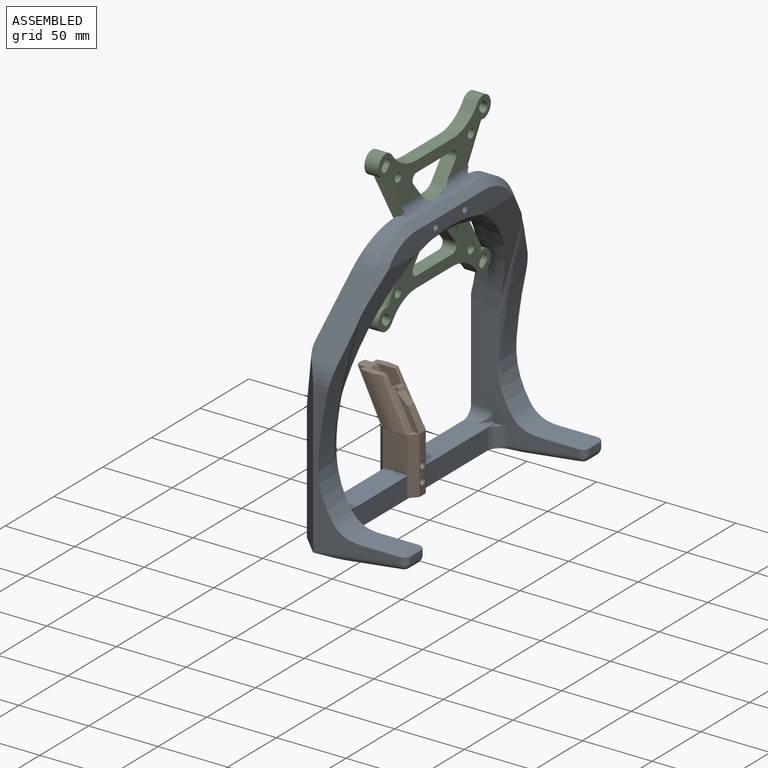
[diagram: assembled view]
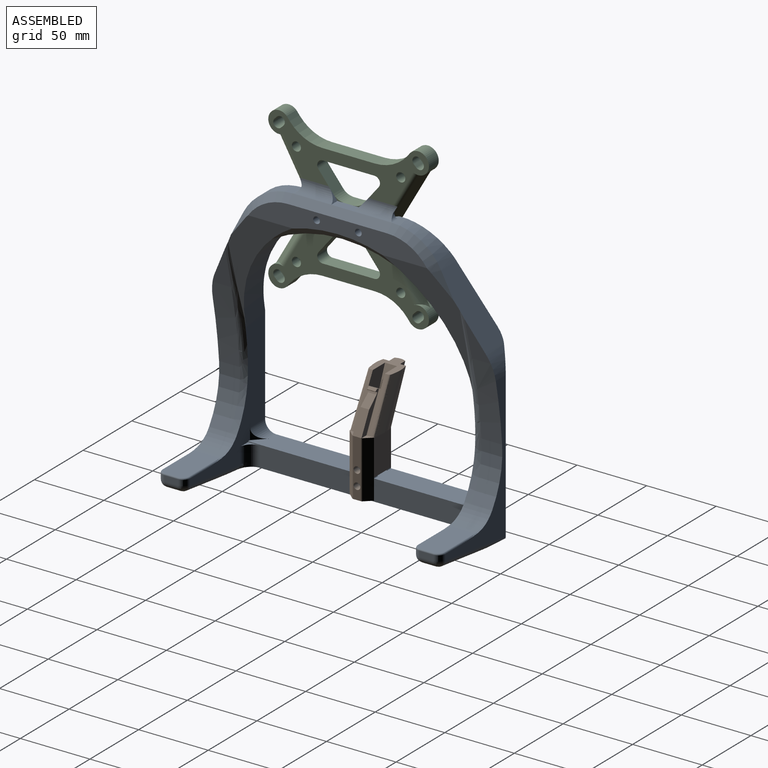
[diagram: assembled view, second angle]
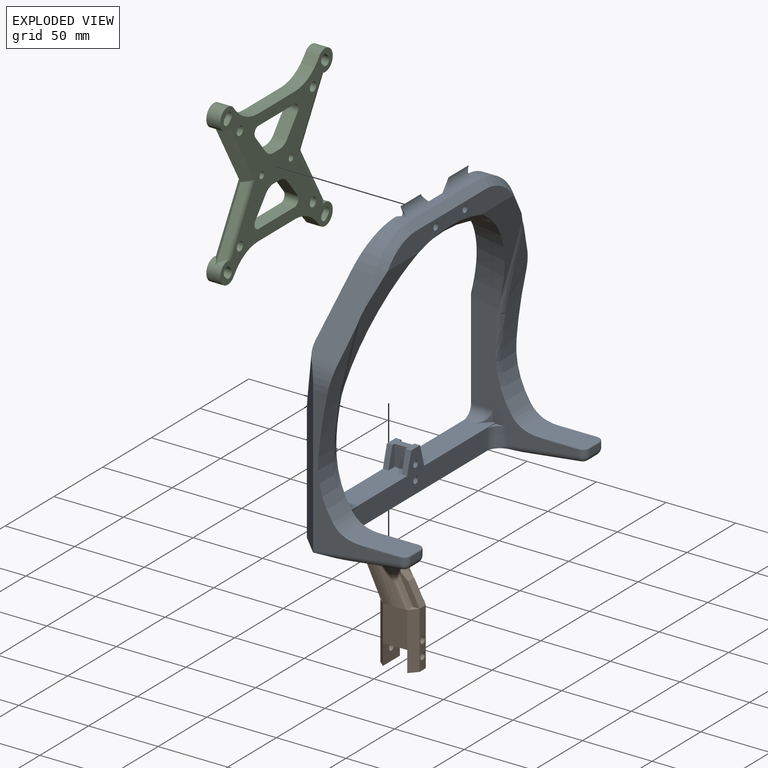
[diagram: exploded view]
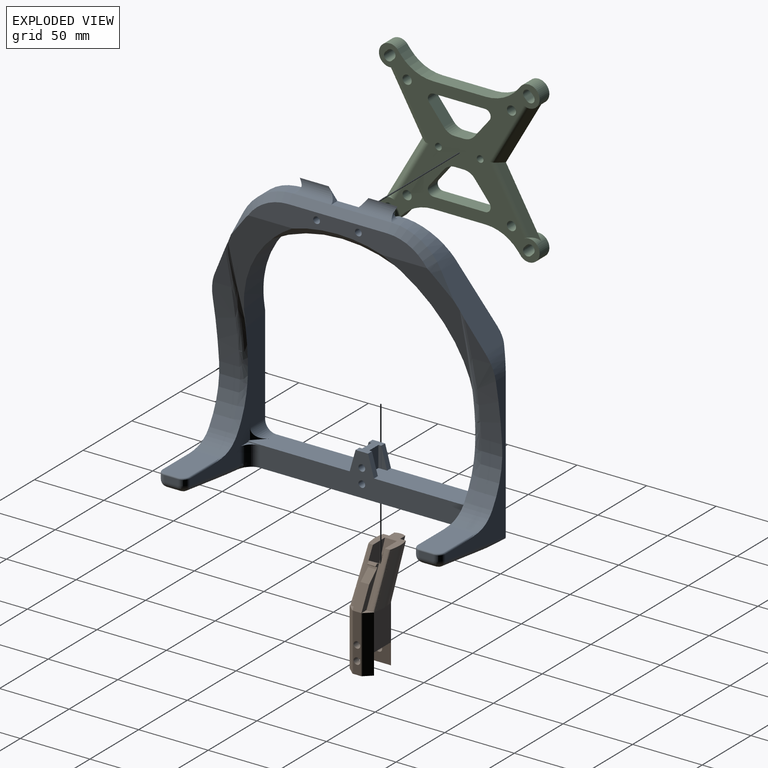
[diagram: exploded view, second angle]
ASSEMBLY  parts=3 mates=2
PART A: 168 faces, bbox 88.6x247.1x212.8 mm
  f0: plane 71.09x5mm, normal (0.71,0,0.71), area 502.7mm2, adj f1,f3,f72,f129,f130,f137
  f1: cylinder r=8mm len=27.77mm, axis (0,1,0), area 255.7mm2, adj f0,f2,f129,f135,f159,f160
  f2: plane 71.74x32.44mm, normal (-1,0,0), area 1389.7mm2, adj f1,f3,f4,f5,f7,f9,f85,f135
  f3: plane 16.05x6.45mm, normal (0,0,1), area 103.5mm2, adj f0,f2,f135,f136
  f4: cylinder r=100mm len=50.09mm, axis (1,0,0), area 478.7mm2, adj f2,f5,f81,f134,f139,f146,f151,f155
  f5: plane 6.45x0.51mm, normal (0,0,-1), area 3.3mm2, adj f2,f4,f7,f133
  f6: plane 101.97x64.3mm, normal (-0.96,0,0.26), area 1945.8mm2, adj f76,f82,f85,f145,f146,f147,f150,f162
  f7: cylinder r=100mm len=50.09mm, axis (-1,0,0), area 478.7mm2, adj f2,f5,f80,f132,f138,f143,f152,f156
  f8: plane 101.97x64.3mm, normal (-0.96,0,0.26), area 1945.8mm2, adj f9,f75,f83,f142,f143,f144,f153,f165
  f9: cylinder r=40mm len=43.91mm, axis (-1,0,0), area 580.2mm2, adj f2,f8,f83,f130,f153,f157,f161
  f10: plane 35.36x18mm, normal (0,0,1), area 629.5mm2, adj f107,f108,f109,f110,f111,f119
  f11: plane 35.36x18mm, normal (0,0,1), area 629.5mm2, adj f112,f113,f114,f115,f116,f122
  f12: plane 8.31x8.31mm, normal (0,0,1), area 15.3mm2, adj f13,f47,f55,f68,f71
  f13: plane 163.45x30mm, normal (1,0,0), area 2372.8mm2, adj f12,f14,f17,f20,f28,f29,f30,f31
  f14: plane 79.22x17.45mm, normal (0,0,1), area 1241.1mm2, adj f13,f16,f18,f25,f26,f27,f31,f35
  f15: cylinder r=350mm len=55.48mm, axis (0,1,0), area 833mm2, adj f43,f73,f84,f103,f104,f124
  f16: plane 11.36x11.36mm, normal (0.71,-0.71,0), area 19.4mm2, adj f14,f47,f97
  f17: plane 79.22x17.45mm, normal (0,0,1), area 1241.1mm2, adj f13,f21,f22,f23,f24,f32,f39,f42
  f18: plane 15x0.05mm, normal (0,1,0), area 0.7mm2, adj f14,f27,f28,f37
  f19: plane 30x17.45mm, normal (-1,0,0), area 360.5mm2, adj f20,f28,f29,f30,f33,f34,f38,f40
  f20: plane 204.71x43.44mm, normal (0,0,-1), area 4169.8mm2, adj f13,f19,f44,f46,f52,f53,f54,f55
  f21: plane 15x6.22mm, normal (-1,0,0), area 61.7mm2, adj f17,f24,f28,f32
  f22: plane 15x0.05mm, normal (0,-1,0), area 0.7mm2, adj f17,f23,f28,f42
  f23: plane 15x2mm, normal (1,0,0), area 30mm2, adj f17,f22,f24,f28
  f24: plane 15x9.45mm, normal (0,-1,0), area 141.8mm2, adj f17,f21,f23,f28
  f25: plane 15x6.22mm, normal (-1,0,0), area 61.7mm2, adj f14,f26,f28,f31
  f26: plane 15x9.45mm, normal (0,1,0), area 141.8mm2, adj f14,f25,f27,f28
  f27: plane 15x2mm, normal (1,0,0), area 30mm2, adj f14,f18,f26,f28
  f28: plane 17.45x9mm, normal (0,0,1), area 119.2mm2, adj f13,f18,f19,f21,f22,f23,f24,f25
  f29: cylinder r=2.4mm len=17.45mm, axis (1,0,0), area 263.1mm2, adj f13,f19
  f30: cylinder r=2.4mm len=17.45mm, axis (1,0,0), area 263.1mm2, adj f13,f19
  f31: plane 15x4.22mm, normal (0,0.96,0.27), area 62.3mm2, adj f13,f14,f25,f28
  f32: plane 15x4.22mm, normal (0,-0.96,0.27), area 62.3mm2, adj f13,f17,f21,f28
  f33: plane 15x0.05mm, normal (0,-1,0), area 0.8mm2, adj f19,f34,f35,f36
  f34: plane 4.22x0.05mm, normal (0,0,-1), area 0.2mm2, adj f19,f33,f35,f36
  f35: plane 15x4.22mm, normal (0,0.96,0.27), area 62.3mm2, adj f14,f28,f33,f34,f36,f37
  f36: plane 15x4.22mm, normal (-1,0,0), area 31.7mm2, adj f33,f34,f35
  f37: plane 15x4.22mm, normal (1,0,0), area 31.7mm2, adj f14,f18,f35
  f38: plane 15x0.05mm, normal (0,1,0), area 0.8mm2, adj f19,f39,f40,f41
  f39: plane 15x4.22mm, normal (0,-0.96,0.27), area 62.3mm2, adj f17,f28,f38,f40,f41,f42
  f40: plane 4.22x0.05mm, normal (0,0,-1), area 0.2mm2, adj f19,f38,f39,f41
  f41: plane 15x4.22mm, normal (-1,0,0), area 31.7mm2, adj f38,f39,f40
  f42: plane 15x4.22mm, normal (1,0,0), area 31.7mm2, adj f17,f22,f39
  f43: plane 104.47x61.95mm, normal (0,1,0), area 1227.4mm2, adj f15,f52,f65,f84,f91,f112,f117,f123
  f44: plane 96.54x78.55mm, normal (-1,0,0), area 1578.7mm2, adj f14,f19,f20,f47,f52,f75,f80,f97
  f45: plane 104.47x61.95mm, normal (0,-1,0), area 1227.4mm2, adj f53,f61,f77,f86,f95,f98,f107,f118
  f46: plane 96.53x78.55mm, normal (-1,0,0), area 1578.7mm2, adj f17,f19,f20,f49,f53,f76,f81,f96
  f47: plane 93.38x76.95mm, normal (0,-1,0), area 1896.1mm2, adj f12,f13,f14,f16,f44,f62,f68,f78
  f48: plane 10x4.09mm, normal (1,0,0), area 40.9mm2, adj f63,f89,f91,f114
  f49: plane 93.38x76.95mm, normal (0,1,0), area 1896.1mm2, adj f13,f17,f46,f50,f58,f66,f79,f81
  f50: plane 8.31x8.31mm, normal (0,0,1), area 15.3mm2, adj f13,f49,f54,f66,f70
  f51: plane 10x4.09mm, normal (1,0,0), area 40.9mm2, adj f60,f93,f95,f109
  f52: plane 123.88x15.13mm, normal (-0.71,0.71,0), area 2284.8mm2, adj f20,f43,f44,f65,f75,f84
  f53: plane 123.88x15.13mm, normal (-0.71,-0.71,0), area 2284.8mm2, adj f20,f45,f46,f61,f76,f86
  f54: plane 14.5x0.67mm, normal (0.71,0.71,0), area 6.9mm2, adj f20,f50,f66,f67,f70
  f55: plane 14.5x0.67mm, normal (0.71,-0.71,0), area 6.9mm2, adj f12,f20,f68,f69,f71
  f56: plane 35.31x10mm, normal (0.12,0,-0.99), area 355.9mm2, adj f62,f63,f64,f65
  f57: plane 35.31x10mm, normal (0.12,0,-0.99), area 355.9mm2, adj f58,f59,f60,f61
  f58: cylinder r=5mm len=51.91mm, axis (0.99,0,0.12), area 356.2mm2, adj f20,f49,f57,f59,f67,f92
  f59: cylinder r=5mm len=11.24mm, axis (0,1,0), area 6.6mm2, adj f20,f57,f58,f61
  f60: cylinder r=5mm len=10mm, axis (0,-1,0), area 72.3mm2, adj f51,f57,f92,f94
  f61: cylinder r=5mm len=63.04mm, axis (-0.99,0,-0.12), area 385mm2, adj f20,f45,f53,f57,f59,f94
  f62: cylinder r=5mm len=51.91mm, axis (0.99,0,0.12), area 356.2mm2, adj f20,f47,f56,f64,f69,f88
  f63: cylinder r=5mm len=10mm, axis (0,-1,0), area 72.3mm2, adj f48,f56,f88,f90
  f64: cylinder r=5mm len=11.24mm, axis (0,1,0), area 6.6mm2, adj f20,f56,f62,f65
  f65: cylinder r=5mm len=63.04mm, axis (-0.99,0,-0.12), area 385mm2, adj f20,f43,f52,f56,f64,f90
  f66: cylinder r=8mm len=11.48mm, axis (0,0,1), area 72.2mm2, adj f49,f50,f54,f67
  f67: bspline ~8.28x8.27mm, area 26.2mm2, adj f20,f54,f58,f66
  f68: cylinder r=8mm len=11.48mm, axis (0,0,-1), area 72.2mm2, adj f12,f47,f55,f69
  f69: bspline ~8.28x8.27mm, area 26.2mm2, adj f20,f55,f62,f68
  f70: cylinder r=8mm len=14.5mm, axis (0,0,1), area 91.1mm2, adj f13,f20,f50,f54
  f71: cylinder r=8mm len=14.5mm, axis (0,0,1), area 91.1mm2, adj f12,f13,f20,f55
  f72: plane 128.54x15mm, normal (1,0,0), area 1417.9mm2, adj f0,f78,f79,f129,f130,f132,f133,f134
  f73: plane 28.56x14.23mm, normal (0.97,0,-0.24), area 207.1mm2, adj f15,f83,f84,f105,f106
  f74: plane 28.56x14.23mm, normal (0.97,0,-0.24), area 207.1mm2, adj f77,f82,f86,f99,f101
  f75: cylinder r=10mm len=49.54mm, axis (-0.26,-0.26,-0.93), area 322.9mm2, adj f8,f44,f52,f83,f84,f142
  f76: cylinder r=10mm len=49.54mm, axis (-0.26,0.26,-0.93), area 322.9mm2, adj f6,f46,f53,f82,f86,f145
  f77: cylinder r=350mm len=55.48mm, axis (0,-1,0), area 833mm2, adj f45,f74,f86,f100,f102,f126
  f78: plane 89.87x54.73mm, normal (0.97,0,-0.26), area 1159.1mm2, adj f47,f72,f80,f83,f104,f105,f106,f130
  f79: plane 89.87x54.73mm, normal (0.97,0,-0.26), area 1159.1mm2, adj f49,f72,f81,f82,f99,f101,f102,f128
  f80: cylinder r=100mm len=85.89mm, axis (1,0,0), area 1622.3mm2, adj f7,f44,f47,f78,f132,f142,f143
  f81: cylinder r=100mm len=85.89mm, axis (1,0,0), area 1622.3mm2, adj f4,f46,f49,f79,f134,f145,f146
  f82: plane 50.61x28.5mm, normal (0,-0.89,0.46), area 1130.1mm2, adj f6,f74,f76,f79,f85,f86,f99,f128
  f83: plane 50.61x28.5mm, normal (0,0.89,0.46), area 1130.1mm2, adj f8,f9,f73,f75,f78,f84,f106,f131
  f84: cylinder r=40mm len=19.15mm, axis (-1,0,0), area 269.7mm2, adj f15,f43,f52,f73,f75,f83
  f85: cylinder r=40mm len=43.91mm, axis (-1,0,0), area 580.2mm2, adj f2,f6,f82,f129,f150,f154,f160
  f86: cylinder r=40mm len=19.15mm, axis (1,0,0), area 269.7mm2, adj f45,f53,f74,f76,f77,f82
  f87: plane 11.36x11.36mm, normal (0.71,0.71,0), area 19.4mm2, adj f17,f49,f96
  f88: sphere r=5mm, area 37mm2, adj f62,f63,f89
  f89: cylinder r=5mm len=5mm, axis (0,0,1), area 32.1mm2, adj f47,f48,f88,f115
  f90: sphere r=5mm, area 23.8mm2, adj f63,f65,f91
  f91: cylinder r=5mm len=5mm, axis (0,0,1), area 32.1mm2, adj f43,f48,f90,f113
  f92: sphere r=5mm, area 23.8mm2, adj f58,f60,f93
  f93: cylinder r=5mm len=5mm, axis (0,0,-1), area 32.1mm2, adj f49,f51,f92,f110
  f94: sphere r=5mm, area 37mm2, adj f60,f61,f95
  f95: cylinder r=5mm len=5mm, axis (0,0,-1), area 32.1mm2, adj f45,f51,f94,f108
  f96: cylinder r=8mm len=15.45mm, axis (1,0,0), area 143.9mm2, adj f17,f46,f49,f87
  f97: cylinder r=8mm len=15.45mm, axis (-1,0,0), area 143.9mm2, adj f14,f16,f44,f47
  f98: plane 20.02x0.6mm, normal (0.83,0,0.56), area 7.9mm2, adj f45,f49,f118,f119,f120,f126,f127
  f99: bspline ~33.21x9.22mm, area 102.2mm2, adj f74,f79,f82,f101
  f100: torus R=357.5mm, axis (0,1,0), area 143mm2, adj f49,f77,f102,f127
  f101: bspline ~19.75x5.97mm, area 0.2mm2, adj f74,f79,f99,f102
  f102: bspline ~35.31x10.13mm, area 101.2mm2, adj f77,f79,f100,f101
  f103: torus R=357.5mm, axis (0,-1,0), area 143mm2, adj f15,f47,f104,f125
  f104: bspline ~27.75x8.17mm, area 101.2mm2, adj f15,f78,f103,f105
  f105: bspline ~18.29x5.58mm, area 0.2mm2, adj f73,f78,f104,f106
  f106: bspline ~70.86x19.04mm, area 102.2mm2, adj f73,f78,f83,f105
  f107: cylinder r=1mm len=31.36mm, axis (-1,0,0), area 41.1mm2, adj f10,f45,f108,f118
  f108: torus R=4mm, axis (0,0,1), area 11.4mm2, adj f10,f95,f107,f109
  f109: cylinder r=1mm len=10mm, axis (0,1,0), area 15.7mm2, adj f10,f51,f108,f110
  f110: torus R=4mm, axis (0,0,1), area 11.4mm2, adj f10,f93,f109,f111
  f111: cylinder r=1mm len=31.36mm, axis (-1,0,0), area 41.1mm2, adj f10,f49,f110,f120
  f112: cylinder r=1mm len=31.36mm, axis (1,0,0), area 41.1mm2, adj f11,f43,f113,f123
  f113: torus R=4mm, axis (0,0,1), area 11.4mm2, adj f11,f91,f112,f114
  f114: cylinder r=1mm len=10mm, axis (0,1,0), area 15.7mm2, adj f11,f48,f113,f115
  f115: torus R=4mm, axis (0,0,1), area 11.4mm2, adj f11,f89,f114,f116
  f116: cylinder r=1mm len=31.36mm, axis (1,0,0), area 41.1mm2, adj f11,f47,f115,f121
  f117: plane 20.02x0.6mm, normal (0.83,0,0.56), area 7.9mm2, adj f43,f47,f121,f122,f123,f124,f125
  f118: bspline ~30.81x21mm, area 24.1mm2, adj f45,f98,f107,f119
  f119: cylinder r=20mm len=18mm, axis (0,1,0), area 350.7mm2, adj f10,f98,f118,f120
  f120: bspline ~31.7x22.32mm, area 24.1mm2, adj f49,f98,f111,f119
  f121: bspline ~31.7x22.32mm, area 24.1mm2, adj f47,f116,f117,f122
  f122: cylinder r=20mm len=18mm, axis (0,-1,0), area 350.7mm2, adj f11,f117,f121,f123
  f123: bspline ~30.81x21mm, area 24.1mm2, adj f43,f112,f117,f122
  f124: cylinder r=60mm len=38.75mm, axis (0,1,0), area 608.7mm2, adj f15,f43,f117,f125
  f125: bspline ~67.49x55.3mm, area 253.5mm2, adj f47,f103,f117,f124
  f126: cylinder r=60mm len=38.75mm, axis (0,-1,0), area 608.7mm2, adj f45,f77,f98,f127
  f127: bspline ~67.49x55.3mm, area 253.5mm2, adj f49,f98,f100,f126
  f128: plane 17.34x12.75mm, normal (0.71,-0.63,0.33), area 57mm2, adj f79,f82,f129
  f129: cone r=35mm half-angle=45deg, axis (-1,0,0), area 285.6mm2, adj f0,f1,f72,f79,f85,f128,f160
  f130: cone r=35mm half-angle=45deg, axis (-1,0,0), area 285.6mm2, adj f0,f9,f72,f78,f131,f137,f161
  f131: plane 17.34x12.75mm, normal (0.71,0.63,0.33), area 57mm2, adj f78,f83,f130
  f132: cone r=105mm half-angle=45deg, axis (1,0,0), area 303.1mm2, adj f7,f72,f78,f80,f133
  f133: plane 5x5mm, normal (0.71,0,-0.71), area 3.6mm2, adj f5,f72,f132,f134
  f134: cone r=105mm half-angle=45deg, axis (1,0,0), area 303.1mm2, adj f4,f72,f79,f81,f133
  f135: plane 7.85x6.45mm, normal (0,0.78,0.63), area 16.3mm2, adj f1,f2,f3
  f136: plane 7.85x6.45mm, normal (0,-0.78,0.63), area 16.3mm2, adj f2,f3,f137
  f137: cylinder r=8mm len=27.78mm, axis (0,1,0), area 255.8mm2, adj f0,f2,f130,f136,f158,f161
  f138: plane 18x10.3mm, normal (0,-0.87,-0.5), area 56.6mm2, adj f7,f143,f144,f152,f167
  f139: plane 18x10.3mm, normal (0,0.87,-0.5), area 56.6mm2, adj f4,f146,f147,f151,f164
  f140: plane 0.95x0.54mm, normal (0,-0.87,0.5), area 0.1mm2, adj f153,f165,f167
  f141: plane 0.95x0.54mm, normal (0,0.87,0.5), area 0.1mm2, adj f150,f162,f164
  f142: bspline ~71.42x32.44mm, area 134mm2, adj f8,f44,f75,f80,f143
  f143: bspline ~21.81x12.49mm, area 19.9mm2, adj f7,f8,f80,f138,f142,f144
  f144: cylinder r=1mm len=18.75mm, axis (0.23,-0.48,0.84), area 36mm2, adj f8,f138,f143,f166
  f145: bspline ~71.42x32.44mm, area 134mm2, adj f6,f46,f76,f81,f146
  f146: bspline ~21.81x12.49mm, area 19.9mm2, adj f4,f6,f81,f139,f145,f147
  f147: cylinder r=1mm len=18.75mm, axis (-0.23,-0.48,-0.84), area 36mm2, adj f6,f139,f146,f163
  f148: cylinder r=2.4mm len=11.45mm, axis (-1,0,0), area 172.6mm2, adj f2,f72
  f149: cylinder r=2.4mm len=11.45mm, axis (-1,0,0), area 172.6mm2, adj f2,f72
  f150: plane 10.04x8.19mm, normal (-0.71,0.61,0.35), area 52mm2, adj f6,f85,f141,f151,f154,f162,f164
  f151: plane 18.56x14.72mm, normal (-0.71,0.61,-0.35), area 100.1mm2, adj f4,f139,f150,f155,f164
  f152: plane 18.56x14.72mm, normal (-0.71,-0.61,-0.35), area 100.1mm2, adj f7,f138,f153,f156,f167
  f153: plane 10.04x8.19mm, normal (-0.71,-0.61,0.35), area 52mm2, adj f8,f9,f140,f152,f157,f165,f167
  f154: cylinder r=5mm len=13.31mm, axis (0,-0.5,0.87), area 42.7mm2, adj f2,f85,f150,f155
  f155: cylinder r=5mm len=19.85mm, axis (0,-0.5,-0.87), area 70mm2, adj f2,f4,f151,f154
  f156: cylinder r=5mm len=19.85mm, axis (0,0.5,-0.87), area 70mm2, adj f2,f7,f152,f157
  f157: cylinder r=5mm len=13.31mm, axis (0,0.5,0.87), area 42.7mm2, adj f2,f9,f153,f156
  f158: plane 3.48x1.89mm, normal (0,0.88,-0.47), area 1mm2, adj f2,f137,f161
  f159: plane 3.48x1.88mm, normal (0,-0.88,-0.47), area 1mm2, adj f1,f2,f160
  f160: cylinder r=3mm len=6.45mm, axis (-1,0,0), area 21mm2, adj f1,f2,f85,f129,f159
  f161: cylinder r=3mm len=6.45mm, axis (-1,0,0), area 21mm2, adj f2,f9,f130,f137,f158
  f162: cylinder r=1mm len=2.66mm, axis (-0.23,0.48,-0.84), area 3.3mm2, adj f6,f141,f150,f163
  f163: sphere r=1mm, area 1mm2, adj f147,f162,f164
  f164: cylinder r=1mm len=0.99mm, axis (1,0,0), area 0.2mm2, adj f139,f141,f150,f151,f163
  f165: cylinder r=1mm len=2.66mm, axis (0.23,0.48,0.84), area 3.3mm2, adj f8,f140,f153,f166
  f166: sphere r=1mm, area 1mm2, adj f144,f165,f167
  f167: cylinder r=1mm len=0.99mm, axis (1,0,0), area 0.2mm2, adj f138,f140,f152,f153,f166
PART B: 107 faces, bbox 50.4x22.2x85.5 mm
  f0: plane 9.45x6.22mm, normal (0,0,-1), area 58.8mm2, adj f1,f68,f69,f70
  f1: plane 26x17.45mm, normal (0,1,0), area 453.6mm2, adj f0,f14,f52,f56,f57,f68,f70,f76
  f2: plane 26x17.45mm, normal (0,-1,0), area 453.6mm2, adj f6,f53,f59,f60,f64,f65,f67,f77
  f3: plane 17.44x5mm, normal (0,0,-1), area 59.8mm2, adj f57,f58,f59,f62,f82,f83
  f4: plane 17.44x5.08mm, normal (0,0,-1), area 66mm2, adj f56,f60,f61,f63,f80,f81
  f5: plane 8.66x1.55mm, normal (0,0,-1), area 7.6mm2, adj f35,f41,f42,f61,f80,f81
  f6: plane 17.9x2.48mm, normal (0,0,-1), area 12.7mm2, adj f2,f7,f12,f13,f49,f51
  f7: bspline ~33.7x25.71mm, area 63.1mm2, adj f6,f43,f49,f89
  f8: bspline ~33.7x25.71mm, area 63.1mm2, adj f14,f40,f48,f98
  f9: plane 22.25x18.07mm, normal (0,0,1), area 211.1mm2, adj f84,f85,f86,f87,f88,f89,f90,f91
  f10: bspline ~33.7x25.71mm, area 0mm2, adj f14,f17,f40
  f11: plane 33.61x19.32mm, normal (0.15,0.98,0.1), area 70.4mm2, adj f14,f48,f50,f102
  f12: bspline ~33.7x25.71mm, area 0mm2, adj f6,f15,f43
  f13: plane 33.61x19.32mm, normal (0.15,-0.98,0.1), area 70.4mm2, adj f6,f49,f51,f93
  f14: plane 17.9x2.48mm, normal (0,0,-1), area 12.7mm2, adj f1,f8,f10,f11,f48,f50
  f15: plane 33.56x16.26mm, normal (-0.9,0,-0.44), area 146mm2, adj f12,f43,f44,f54,f85
  f16: plane 33.65x17.6mm, normal (0.89,0,0.46), area 106.1mm2, adj f18,f30,f31,f32,f46,f47,f50,f51
  f17: plane 33.56x16.26mm, normal (-0.9,0,-0.44), area 146mm2, adj f10,f40,f45,f55,f94
  f18: plane 6.62x1.81mm, normal (-0.33,0,0.94), area 11.4mm2, adj f16,f23,f24,f25,f46,f47
  f19: plane 15.63x8.23mm, normal (0.89,0,0.46), area 111.1mm2, adj f20,f24,f25,f58,f82,f83
  f20: plane 7.67x6.72mm, normal (0.66,0,0.75), area 62.6mm2, adj f19,f21,f24,f25
  f21: plane 6.06x1.14mm, normal (0.86,0,0.5), area 8mm2, adj f20,f24,f25,f28
  f22: plane 6.03x1.27mm, normal (0.28,0,-0.96), area 8mm2, adj f24,f25,f28,f29
  f23: plane 6.03x1.49mm, normal (0.61,0,0.79), area 11.3mm2, adj f18,f24,f25,f29
  f24: plane 25.85x17.8mm, normal (0,-1,0.01), area 94.5mm2, adj f18,f19,f20,f21,f22,f23,f28,f29
  f25: plane 25.85x17.8mm, normal (0,1,0.01), area 94.5mm2, adj f18,f19,f20,f21,f22,f23,f28,f29
  f26: plane 33.6x20.97mm, normal (0,1,0.01), area 155.9mm2, adj f36,f42,f45,f55,f90
  f27: plane 33.6x20.97mm, normal (0,-1,0.01), area 155.9mm2, adj f39,f41,f44,f54,f86
  f28: cylinder r=0.3mm len=6.04mm, axis (0,-1,0), area 3.3mm2, adj f21,f22,f24,f25
  f29: cylinder r=0.3mm len=6.03mm, axis (0,1,0), area 4mm2, adj f22,f23,f24,f25
  f30: plane 16.84x14.43mm, normal (0,1,0), area 149.1mm2, adj f16,f31,f34,f99,f106
  f31: plane 8.6x0.02mm, normal (-1,0,0), area 0.2mm2, adj f16,f30,f32,f34
  f32: plane 16.84x14.43mm, normal (0,-1,0), area 149.1mm2, adj f16,f31,f34,f103,f106
  f33: plane 8.61x0.02mm, normal (0.97,0,0.25), area 0.2mm2, adj f99,f101,f103,f106
  f34: plane 10.96x8.6mm, normal (-0.48,0,0.87), area 107.7mm2, adj f30,f31,f32,f106
  f35: bspline ~33.56x17.38mm, area 310.6mm2, adj f5,f37,f38,f41,f42,f88
  f36: plane 1.81x0.89mm, normal (0,1,0.01), area 0mm2, adj f26,f42,f90
  f37: plane 15.82x7.62mm, normal (0,1,0), area 0.6mm2, adj f35,f42,f88,f90
  f38: plane 15.82x7.62mm, normal (0,-1,0), area 0.6mm2, adj f35,f41,f86,f88
  f39: plane 1.81x0.89mm, normal (0,-1,0.01), area 0mm2, adj f27,f41,f86
  f40: bspline ~34.8x16.82mm, area 8.6mm2, adj f8,f10,f17,f94,f96
  f41: bspline ~45.23x22.29mm, area 9.6mm2, adj f5,f27,f35,f38,f39,f54,f86
  f42: bspline ~45.23x22.29mm, area 9.6mm2, adj f5,f26,f35,f36,f37,f55,f90
  f43: bspline ~35.44x17.13mm, area 8.6mm2, adj f7,f12,f15,f85,f87
  f44: cylinder r=0.3mm len=33.87mm, axis (-0.44,0.01,0.9), area 17.6mm2, adj f15,f27,f54,f84
  f45: cylinder r=0.3mm len=33.87mm, axis (-0.44,-0.01,0.9), area 17.6mm2, adj f17,f26,f55,f92
  f46: cylinder r=0.3mm len=25.5mm, axis (-0.46,-0.01,0.89), area 13.4mm2, adj f16,f18,f25,f52
  f47: cylinder r=0.3mm len=25.5mm, axis (-0.46,0.01,0.89), area 13.4mm2, adj f16,f18,f24,f53
  f48: cylinder r=20mm len=40.9mm, axis (-0.45,-0.02,0.89), area 307.6mm2, adj f8,f11,f14,f100
  f49: cylinder r=20mm len=40.9mm, axis (-0.45,0.02,0.89), area 307.6mm2, adj f6,f7,f13,f91
  f50: bspline ~43.72x25.04mm, area 239.4mm2, adj f11,f14,f16,f52,f104
  f51: bspline ~43.72x25.04mm, area 239.4mm2, adj f6,f13,f16,f53,f95
  f52: plane 7.94x7.69mm, normal (0,0,1), area 14mm2, adj f1,f16,f25,f46,f50,f57,f82
  f53: plane 7.93x7.68mm, normal (0,0,1), area 14mm2, adj f2,f16,f24,f47,f51,f59,f83
  f54: plane 4.98x4.49mm, normal (0,0,1), area 11.2mm2, adj f15,f27,f41,f44,f60,f80
  f55: plane 4.98x4.49mm, normal (0,0,1), area 11.2mm2, adj f17,f26,f42,f45,f56,f81
  f56: plane 41x4.57mm, normal (-0.66,0.75,0), area 248.5mm2, adj f1,f4,f55,f63,f81
  f57: plane 41x5.04mm, normal (0.74,0.67,0), area 280mm2, adj f1,f3,f52,f62,f82
  f58: plane 41x5.33mm, normal (1,0,0), area 182.4mm2, adj f3,f19,f74,f75,f82,f83
  f59: plane 41x5.04mm, normal (0.74,-0.67,0), area 280mm2, adj f2,f3,f53,f62,f83
  f60: plane 41x4.57mm, normal (-0.66,-0.75,0), area 248.5mm2, adj f2,f4,f54,f63,f80
  f61: plane 41x7.21mm, normal (-1,0,0), area 259.4mm2, adj f4,f5,f72,f73,f80,f81
  f62: plane 30x17.44mm, normal (-1,0,0), area 423.8mm2, adj f3,f57,f59,f71,f74,f75,f76,f79
  f63: plane 30x17.44mm, normal (1,0,0), area 423.8mm2, adj f4,f56,f60,f71,f72,f73,f77,f78
  f64: plane 9.45x6.22mm, normal (0,0,-1), area 58.8mm2, adj f2,f65,f66,f67
  f65: plane 15x6.22mm, normal (1,0,0), area 61.7mm2, adj f2,f64,f66,f71,f79
  f66: plane 15x9.45mm, normal (0,1,0), area 141.7mm2, adj f64,f65,f67,f71
  f67: plane 15x6.22mm, normal (-1,0,0), area 61.7mm2, adj f2,f64,f66,f71,f77
  f68: plane 15x6.22mm, normal (-1,0,0), area 61.7mm2, adj f0,f1,f69,f71,f78
  f69: plane 15x9.45mm, normal (0,-1,0), area 141.7mm2, adj f0,f68,f70,f71
  f70: plane 15x6.22mm, normal (1,0,0), area 61.7mm2, adj f0,f1,f69,f71,f76
  f71: plane 17.45x9mm, normal (0,0,-1), area 119.2mm2, adj f62,f63,f65,f66,f67,f68,f69,f70
  f72: cylinder r=2.4mm len=5.08mm, axis (1,0,0), area 76.6mm2, adj f61,f63
  f73: cylinder r=2.4mm len=5.08mm, axis (1,0,0), area 76.6mm2, adj f61,f63
  f74: cylinder r=2.4mm len=5mm, axis (1,0,0), area 75.4mm2, adj f58,f62
  f75: cylinder r=2.4mm len=5mm, axis (1,0,0), area 75.4mm2, adj f58,f62
  f76: plane 14.99x4.22mm, normal (0,-0.96,-0.27), area 62.3mm2, adj f1,f62,f70,f71
  f77: plane 14.99x4.22mm, normal (0,0.96,-0.27), area 62.3mm2, adj f2,f63,f67,f71
  f78: plane 14.99x4.22mm, normal (0,-0.96,-0.27), area 62.3mm2, adj f1,f63,f68,f71
  f79: plane 14.99x4.22mm, normal (0,0.96,-0.27), area 62.3mm2, adj f2,f62,f65,f71
  f80: cylinder r=1.5mm len=41mm, axis (0,0,-1), area 52.5mm2, adj f4,f5,f54,f60,f61
  f81: cylinder r=1.5mm len=41mm, axis (0,0,-1), area 52.5mm2, adj f4,f5,f55,f56,f61
  f82: cylinder r=1.5mm len=41.22mm, axis (0,0,1), area 45.6mm2, adj f3,f19,f25,f52,f57,f58
  f83: cylinder r=1.5mm len=41.22mm, axis (0,0,-1), area 45.6mm2, adj f3,f19,f24,f53,f58,f59
  f84: bspline ~0.51x0.43mm, area 0.1mm2, adj f9,f44,f85,f86
  f85: cylinder r=0.1mm len=3.7mm, axis (0,-1,0), area 0.7mm2, adj f9,f15,f43,f84,f87
  f86: cylinder r=0.1mm len=4.89mm, axis (-1,0,0), area 0.8mm2, adj f9,f27,f38,f39,f41,f84,f88
  f87: bspline ~0.35x0.31mm, area 0.1mm2, adj f9,f43,f85,f89
  f88: bspline ~8.64x1.51mm, area 1.6mm2, adj f9,f35,f37,f38,f86,f90
  f89: bspline ~4.84x1.12mm, area 0.2mm2, adj f7,f9,f87,f91
  f90: cylinder r=0.1mm len=4.89mm, axis (-1,0,0), area 0.8mm2, adj f9,f26,f36,f37,f42,f88,f92
  f91: bspline ~13.46x1.35mm, area 1.4mm2, adj f9,f49,f89,f93
  f92: bspline ~0.51x0.43mm, area 0.1mm2, adj f9,f45,f90,f94
  f93: cylinder r=0.1mm len=1.75mm, axis (0.99,0.15,0), area 0.3mm2, adj f9,f13,f91,f95
  f94: cylinder r=0.1mm len=3.7mm, axis (0,-1,0), area 0.7mm2, adj f9,f17,f40,f92,f96
  f95: bspline ~4.93x4.6mm, area 0.8mm2, adj f9,f51,f93,f97
  f96: bspline ~0.35x0.31mm, area 0.1mm2, adj f9,f40,f94,f98
  f97: cylinder r=0.1mm len=0.28mm, axis (0,1,0), area 0mm2, adj f9,f16,f95,f99
  f98: bspline ~2.76x0.78mm, area 0.2mm2, adj f8,f9,f96,f100
  f99: cylinder r=0.1mm len=12.58mm, axis (-1,0,0), area 2mm2, adj f9,f16,f30,f33,f97,f101,f106
  f100: bspline ~13.46x1.35mm, area 1.4mm2, adj f9,f48,f98,f102
  f101: cylinder r=0.1mm len=8.8mm, axis (0,-1,0), area 1.1mm2, adj f9,f33,f99,f103
  f102: cylinder r=0.1mm len=1.75mm, axis (-0.99,0.15,0), area 0.3mm2, adj f9,f11,f100,f104
  f103: cylinder r=0.1mm len=12.58mm, axis (1,0,0), area 2mm2, adj f9,f16,f32,f33,f101,f105,f106
  f104: bspline ~4.93x4.6mm, area 0.8mm2, adj f9,f50,f102,f105
  f105: cylinder r=0.1mm len=0.48mm, axis (0,1,0), area 0mm2, adj f9,f16,f103,f104
  f106: plane 14.44x8.6mm, normal (0.93,0,0.38), area 134.1mm2, adj f30,f32,f33,f34,f99,f103
PART C: 70 faces, bbox 10x115.5x115.5 mm
  f0: cylinder r=3.25mm len=10mm, axis (-1,0,0), area 102.1mm2, adj f1,f39,f40,f41
  f1: plane 10x1.77mm, normal (0,-0.71,-0.71), area 25mm2, adj f0,f2,f40,f41
  f2: cylinder r=3.25mm len=10mm, axis (-1,0,0), area 102.1mm2, adj f1,f39,f40,f41
  f3: cylinder r=3.25mm len=10mm, axis (-1,0,0), area 102.1mm2, adj f4,f27,f40,f41
  f4: plane 10x1.77mm, normal (0,0.71,-0.71), area 25mm2, adj f3,f5,f40,f41
  f5: cylinder r=3.25mm len=10mm, axis (-1,0,0), area 102.1mm2, adj f4,f27,f40,f41
  f6: cylinder r=3.25mm len=10mm, axis (-1,0,0), area 102.1mm2, adj f7,f28,f40,f41
  f7: plane 10x1.77mm, normal (0,-0.71,-0.71), area 25mm2, adj f6,f8,f40,f41
  f8: cylinder r=3.25mm len=10mm, axis (-1,0,0), area 102.1mm2, adj f7,f28,f40,f41
  f9: plane 10x6.46mm, normal (0,0,-1), area 64.5mm2, adj f40,f41,f52,f53
  f10: plane 13.26x10.64mm, normal (0,0.78,-0.63), area 170mm2, adj f40,f41,f49,f52
  f11: plane 37.09x10mm, normal (0,0,1), area 370.9mm2, adj f40,f41,f48,f49
  f12: cylinder r=3.25mm len=10mm, axis (-1,0,0), area 102.1mm2, adj f13,f34,f40,f41
  f13: plane 10x1.77mm, normal (0,-0.71,0.71), area 25mm2, adj f12,f14,f40,f41
  f14: cylinder r=3.25mm len=10mm, axis (-1,0,0), area 102.1mm2, adj f13,f34,f40,f41
  f15: cylinder r=7.75mm len=15.5mm, axis (-1,0,0), area 289.3mm2, adj f37,f40,f41,f58,f60,f64,f68
  f16: cylinder r=7.75mm len=15.5mm, axis (-1,0,0), area 289.3mm2, adj f17,f40,f41,f59,f61,f65,f69
  f17: plane 10x2.76mm, normal (0,-0.78,-0.63), area 35.3mm2, adj f16,f40,f41,f44
  f18: plane 37.82x10mm, normal (0,0,-1), area 378.2mm2, adj f40,f41,f44,f45
  f19: plane 10x2.76mm, normal (0,0.78,-0.63), area 35.3mm2, adj f20,f40,f41,f45
  f20: cylinder r=7.75mm len=15.5mm, axis (-1,0,0), area 289.3mm2, adj f19,f40,f41,f56,f57,f63,f67
  f21: cylinder r=7.75mm len=15.5mm, axis (-1,0,0), area 289.3mm2, adj f22,f40,f41,f54,f55,f62,f66
  f22: plane 10x2.76mm, normal (0,0.78,0.63), area 35.3mm2, adj f21,f40,f41,f43
  f23: plane 37.82x10mm, normal (0,0,1), area 378.2mm2, adj f40,f41,f42,f43
  f24: plane 13.26x10.64mm, normal (0,-0.78,0.63), area 170mm2, adj f40,f41,f46,f50
  f25: plane 37.09x10mm, normal (0,0,-1), area 370.9mm2, adj f40,f41,f46,f47
  f26: plane 13.26x10.64mm, normal (0,0.78,0.63), area 170mm2, adj f40,f41,f47,f51
  f27: plane 10x1.77mm, normal (0,-0.71,0.71), area 25mm2, adj f3,f5,f40,f41
  f28: plane 10x1.77mm, normal (0,0.71,0.71), area 25mm2, adj f6,f8,f40,f41
  f29: cylinder r=3.25mm len=10mm, axis (-1,0,0), area 204.2mm2, adj f40,f41
  f30: cylinder r=3.25mm len=10mm, axis (-1,0,0), area 204.2mm2, adj f40,f41
  f31: cylinder r=2.4mm len=10mm, axis (-1,0,0), area 150.8mm2, adj f40,f41
  f32: plane 13.26x10.64mm, normal (0,-0.78,-0.63), area 170mm2, adj f40,f41,f48,f53
  f33: cylinder r=2.4mm len=10mm, axis (-1,0,0), area 150.8mm2, adj f40,f41
  f34: plane 10x1.77mm, normal (0,0.71,-0.71), area 25mm2, adj f12,f14,f40,f41
  f35: cylinder r=3.25mm len=10mm, axis (-1,0,0), area 204.2mm2, adj f40,f41
  f36: cylinder r=3.25mm len=10mm, axis (-1,0,0), area 204.2mm2, adj f40,f41
  f37: plane 10x2.76mm, normal (0,-0.78,0.63), area 35.3mm2, adj f15,f40,f41,f42
  f38: plane 10x6.46mm, normal (0,0,1), area 64.5mm2, adj f40,f41,f50,f51
  f39: plane 10x1.77mm, normal (0,0.71,0.71), area 25mm2, adj f0,f2,f40,f41
  f40: plane 115.5x115.5mm, normal (1,0,0), area 4797.6mm2, adj f0,f1,f2,f3,f4,f5,f6,f7
  f41: plane 115.5x115.5mm, normal (-1,0,0), area 4797.6mm2, adj f0,f1,f2,f3,f4,f5,f6,f7
  f42: cylinder r=30mm len=23.4mm, axis (1,0,0), area 268.4mm2, adj f23,f37,f40,f41
  f43: cylinder r=30mm len=23.4mm, axis (-1,0,0), area 268.4mm2, adj f22,f23,f40,f41
  f44: cylinder r=30mm len=23.4mm, axis (-1,0,0), area 268.4mm2, adj f17,f18,f40,f41
  f45: cylinder r=30mm len=23.4mm, axis (1,0,0), area 268.4mm2, adj f18,f19,f40,f41
  f46: cylinder r=4mm len=10mm, axis (-1,0,0), area 89.9mm2, adj f24,f25,f40,f41
  f47: cylinder r=4mm len=10mm, axis (1,0,0), area 89.9mm2, adj f25,f26,f40,f41
  f48: cylinder r=4mm len=10mm, axis (1,0,0), area 89.9mm2, adj f11,f32,f40,f41
  f49: cylinder r=4mm len=10mm, axis (-1,0,0), area 89.9mm2, adj f10,f11,f40,f41
  f50: cylinder r=10mm len=10mm, axis (1,0,0), area 89.5mm2, adj f24,f38,f40,f41
  f51: cylinder r=10mm len=10mm, axis (-1,0,0), area 89.5mm2, adj f26,f38,f40,f41
  f52: cylinder r=10mm len=10mm, axis (-1,0,0), area 89.5mm2, adj f9,f10,f40,f41
  f53: cylinder r=10mm len=10mm, axis (1,0,0), area 89.5mm2, adj f9,f32,f40,f41
  f54: plane 44.52x29.55mm, normal (0.71,-0.61,-0.35), area 246.8mm2, adj f21,f55,f56,f62
  f55: plane 44.52x29.55mm, normal (-0.71,-0.61,-0.35), area 246.8mm2, adj f21,f54,f57,f66
  f56: plane 44.52x29.55mm, normal (0.71,-0.61,0.35), area 246.8mm2, adj f20,f54,f57,f63
  f57: plane 44.52x29.55mm, normal (-0.71,-0.61,0.35), area 246.8mm2, adj f20,f55,f56,f67
  f58: plane 44.52x29.55mm, normal (0.71,0.61,-0.35), area 246.8mm2, adj f15,f59,f60,f64
  f59: plane 44.52x29.55mm, normal (0.71,0.61,0.35), area 246.8mm2, adj f16,f58,f61,f65
  f60: plane 44.52x29.55mm, normal (-0.71,0.61,-0.35), area 246.8mm2, adj f15,f58,f61,f68
  f61: plane 44.52x29.55mm, normal (-0.71,0.61,0.35), area 246.8mm2, adj f16,f59,f60,f69
  f62: cylinder r=5mm len=45.76mm, axis (0,-0.5,0.87), area 192.3mm2, adj f21,f40,f54,f63
  f63: cylinder r=5mm len=45.76mm, axis (0,-0.5,-0.87), area 192.3mm2, adj f20,f40,f56,f62
  f64: cylinder r=5mm len=45.76mm, axis (0,0.5,0.87), area 192.3mm2, adj f15,f40,f58,f65
  f65: cylinder r=5mm len=45.76mm, axis (0,0.5,-0.87), area 192.3mm2, adj f16,f40,f59,f64
  f66: cylinder r=5mm len=45.76mm, axis (0,0.5,-0.87), area 192.3mm2, adj f21,f41,f55,f67
  f67: cylinder r=5mm len=45.76mm, axis (0,0.5,0.87), area 192.3mm2, adj f20,f41,f57,f66
  f68: cylinder r=5mm len=45.76mm, axis (0,-0.5,-0.87), area 192.3mm2, adj f15,f41,f60,f69
  f69: cylinder r=5mm len=45.76mm, axis (0,-0.5,0.87), area 192.3mm2, adj f16,f41,f61,f68
PLACE A t=(72.31,17.76,3.04)mm
PLACE B t=(10.29,17.76,3.61)mm fixed
PLACE C t=(93.31,223.31,16.76)mm
MATE fastened C.f31 <-> A.f148  axis (1,0,0) through (31.21,32.76,116.59)mm
MATE slider B.f71 <-> A.f28  axis (0,0,-1) through (8.94,17.76,-38.84)mm
